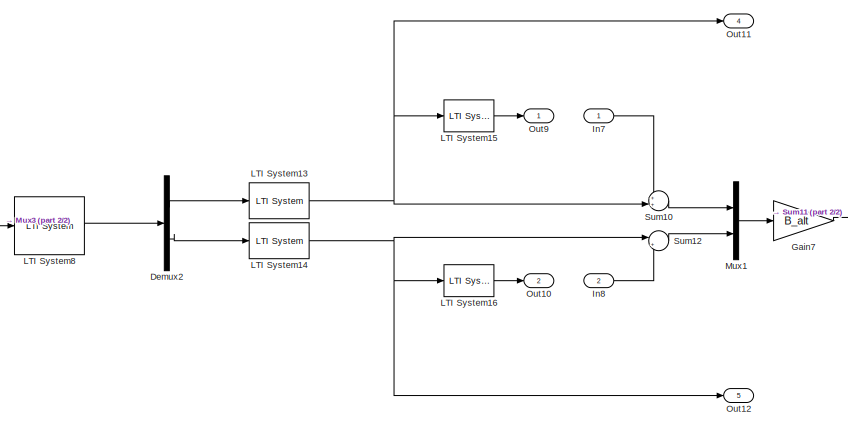
[diagram: root canvas - part 1/2, left side, full height]
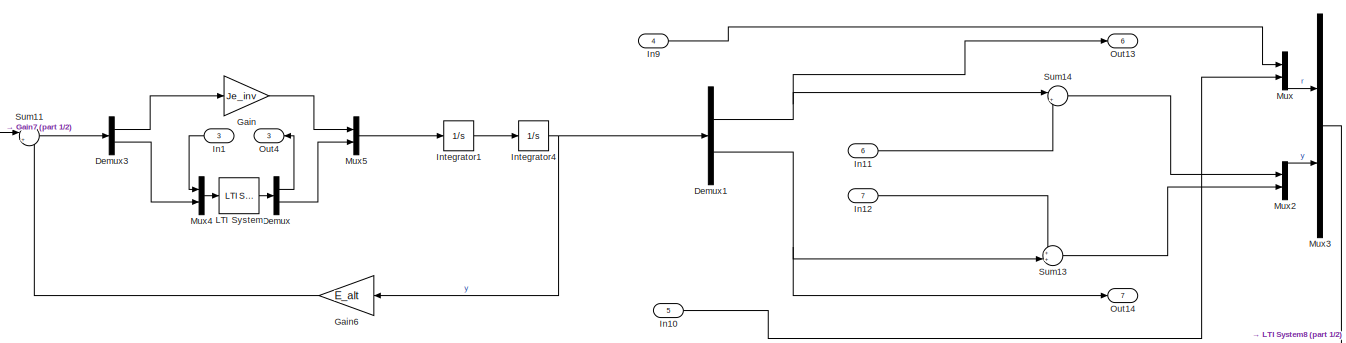
[diagram: root canvas - part 2/2, middle right region]
MODEL slx_f17c733b0637
KIND model
CONFIG AbsTol = auto
CONFIG EnableMultiTasking = off
CONFIG FixedStep = auto
CONFIG MaxStep = 0.01
CONFIG MinStep = auto
CONFIG RelTol = 1e-5
CONFIG SampleTimeConstraint = Unconstrained
CONFIG SolverName = VariableStepAuto
CONFIG StartTime = 0.0
CONFIG StopTime = 20
BLOCK [Demux] Demux
  Outputs = 2
BLOCK [Demux] Demux1
  Outputs = 2
BLOCK [Demux] Demux2
  Outputs = 2
BLOCK [Demux] Demux3
  Outputs = 2
BLOCK [Gain] Gain
  Gain = Je_inv
BLOCK [Gain] Gain6
  Gain = E_alt
  Multiplication = Matrix(K*u)
  NameLocation = top
BLOCK [Gain] Gain7
  Gain = B_alt
  Multiplication = Matrix(K*u)
BLOCK [Inport] In1
  NameLocation = top
  Port = 3
BLOCK [Inport] In10
  Port = 5
BLOCK [Inport] In11
  Port = 6
BLOCK [Inport] In12
  Port = 7
BLOCK [Inport] In7
BLOCK [Inport] In8
  Port = 2
BLOCK [Inport] In9
  Port = 4
BLOCK [Integrator] Integrator1
BLOCK [Integrator] Integrator4
BLOCK [Reference] LTI System  REF=cstblocks/LTI System
  SourceBlock = cstblocks/LTI System
  SourceType = LTI Block
BLOCK [Reference] LTI System13  REF=cstblocks/LTI System
  SourceBlock = cstblocks/LTI System
  SourceType = LTI Block
BLOCK [Reference] LTI System14  REF=cstblocks/LTI System
  SourceBlock = cstblocks/LTI System
  SourceType = LTI Block
BLOCK [Reference] LTI System15  REF=cstblocks/LTI System
  SourceBlock = cstblocks/LTI System
  SourceType = LTI Block
BLOCK [Reference] LTI System16  REF=cstblocks/LTI System
  SourceBlock = cstblocks/LTI System
  SourceType = LTI Block
BLOCK [Reference] LTI System8  REF=cstblocks/LTI System
  SourceBlock = cstblocks/LTI System
  SourceType = LTI Block
BLOCK [Mux] Mux
  DisplayOption = bar
  Inputs = 2
BLOCK [Mux] Mux1
  DisplayOption = bar
  Inputs = 2
BLOCK [Mux] Mux2
  DisplayOption = bar
  Inputs = 2
BLOCK [Mux] Mux3
  DisplayOption = bar
  Inputs = 2
BLOCK [Mux] Mux4
  DisplayOption = bar
  Inputs = 2
BLOCK [Mux] Mux5
  DisplayOption = bar
  Inputs = 2
BLOCK [Outport] Out10
  Port = 2
BLOCK [Outport] Out11
  Port = 4
BLOCK [Outport] Out12
  Port = 5
BLOCK [Outport] Out13
  Port = 6
BLOCK [Outport] Out14
  Port = 7
BLOCK [Outport] Out4
  NameLocation = top
  Port = 3
BLOCK [Outport] Out9
BLOCK [Sum] Sum10
  Inputs = ++|
BLOCK [Sum] Sum11
  Inputs = |++
BLOCK [Sum] Sum12
  Inputs = |++
BLOCK [Sum] Sum13
  Inputs = ++|
BLOCK [Sum] Sum14
  Inputs = |++
NET Demux1:1 -> Out13:1, Sum14:1
NET Demux1:2 -> Out14:1, Sum13:2
LINE Demux2:1 -> LTI System13:1
LINE Demux2:2 -> LTI System14:1
LINE Demux3:1 -> Gain:1
LINE Demux3:2 -> Mux4:2
LINE Demux:1 -> Out4:1
LINE Demux:2 -> Mux5:2
LINE Gain6:1 -> Sum11:2
LINE Gain7:1 -> Sum11:1
LINE Gain:1 -> Mux5:1
LINE In10:1 -> Mux:2
LINE In11:1 -> Sum14:2
LINE In12:1 -> Sum13:1
LINE In1:1 -> Mux4:1
LINE In7:1 -> Sum10:1
LINE In8:1 -> Sum12:2
LINE In9:1 -> Mux:1
LINE Integrator1:1 -> Integrator4:1
NET Integrator4:1 -> Demux1:1, Gain6:1
NET LTI System13:1 -> LTI System15:1, Out11:1, Sum10:2
NET LTI System14:1 -> LTI System16:1, Out12:1, Sum12:1
LINE LTI System15:1 -> Out9:1
LINE LTI System16:1 -> Out10:1
LINE LTI System8:1 -> Demux2:1
LINE LTI System:1 -> Demux:1
LINE Mux1:1 -> Gain7:1
LINE Mux2:1 -> Mux3:2
LINE Mux3:1 -> LTI System8:1
LINE Mux4:1 -> LTI System:1
LINE Mux5:1 -> Integrator1:1
LINE Mux:1 -> Mux3:1
LINE Sum10:1 -> Mux1:1
LINE Sum11:1 -> Demux3:1
LINE Sum12:1 -> Mux1:2
LINE Sum13:1 -> Mux2:2
LINE Sum14:1 -> Mux2:1
note: NET lines group one-source signal fan-out (src -> all destinations, sorted); 1:1 wires keep LINE
